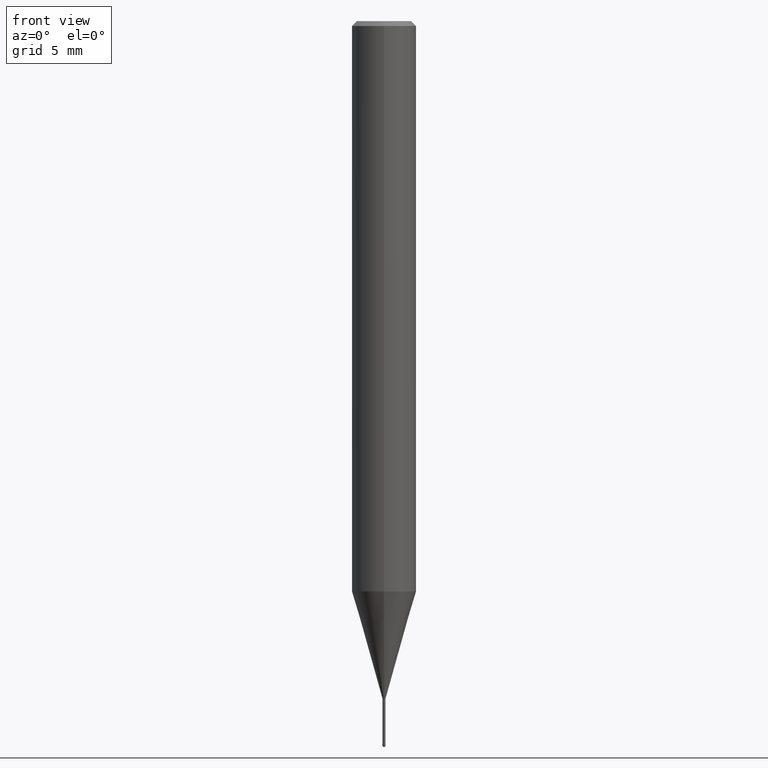
[diagram: clean part render]
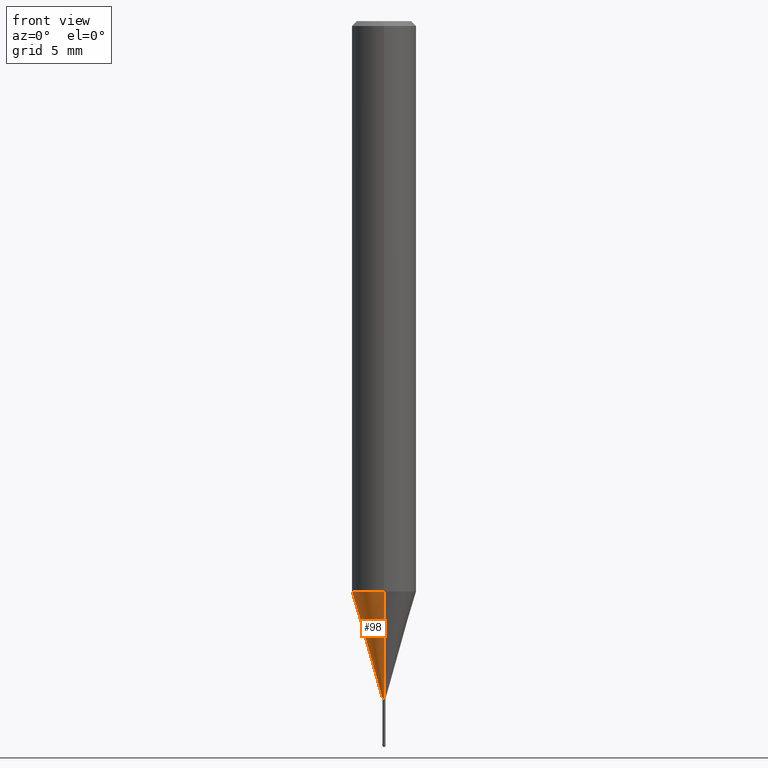
[diagram: same view with one face highlighted and labeled with its STEP entity id]
A machine part, front view. The second image highlights one B-rep face of the part: STEP entity #98.
In plain terms, the highlighted conical surface has half-angle 15.999 deg.
Its self-contained STEP definition (entity closure, byte-faithful):
#98=ADVANCED_FACE('',(#240),#241,.T.);
#120=VERTEX_POINT('',#266);
#122=VERTEX_POINT('',#268);
#124=VERTEX_POINT('',#270);
#142=EDGE_CURVE('',#120,#212,#291,.T.);
#152=EDGE_CURVE('',#120,#122,#303,.T.);
#176=EDGE_CURVE('',#212,#124,#331,.T.);
#212=VERTEX_POINT('',#370);
#214=EDGE_CURVE('',#124,#122,#372,.T.);
#240=FACE_OUTER_BOUND('',#392,.T.);
#241=CONICAL_SURFACE('',#393,1.04745,0.279233718115795);
#266=CARTESIAN_POINT('',(1.16276373295435E-017,-0.09495,-42.0));
#268=CARTESIAN_POINT('',(0.0,0.09495,-42.0));
#270=CARTESIAN_POINT('',(0.0,1.99995,-35.356));
#291=LINE('',#457,#458);
#303=CIRCLE('',#473,0.09495);
#331=CIRCLE('',#503,1.99995);
#370=CARTESIAN_POINT('',(2.44915147732706E-016,-1.99995,-35.356));
#372=LINE('',#556,#557);
#392=EDGE_LOOP('',(#569,#570,#571,#572));
#393=AXIS2_PLACEMENT_3D('',#573,#574,#575);
#457=CARTESIAN_POINT('',(1.28271392531125E-016,-1.04745,-38.678));
#458=VECTOR('',#635,1.0);
#473=AXIS2_PLACEMENT_3D('',#656,#657,#658);
#503=AXIS2_PLACEMENT_3D('',#689,#690,#691);
#556=CARTESIAN_POINT('',(-1.28271392531125E-016,1.04745,-38.678));
#557=VECTOR('',#739,1.0);
#569=ORIENTED_EDGE('',*,*,#214,.T.);
#570=ORIENTED_EDGE('',*,*,#152,.F.);
#571=ORIENTED_EDGE('',*,*,#142,.T.);
#572=ORIENTED_EDGE('',*,*,#176,.T.);
#573=CARTESIAN_POINT('',(0.0,0.0,-38.678));
#574=DIRECTION('',(-0.0,-0.0,1.0));
#575=DIRECTION('',(0.0,1.0,0.0));
#635=DIRECTION('',(3.37524935540219E-017,-0.275619128127744,0.961266922457078));
#656=CARTESIAN_POINT('',(0.0,0.0,-42.0));
#657=DIRECTION('',(0.0,0.0,-1.0));
#658=DIRECTION('',(0.0,1.0,0.0));
#689=CARTESIAN_POINT('',(0.0,0.0,-35.356));
#690=DIRECTION('',(0.0,0.0,-1.0));
#691=DIRECTION('',(0.0,1.0,0.0));
#739=DIRECTION('',(3.37524935540219E-017,-0.275619128127744,-0.961266922457078));